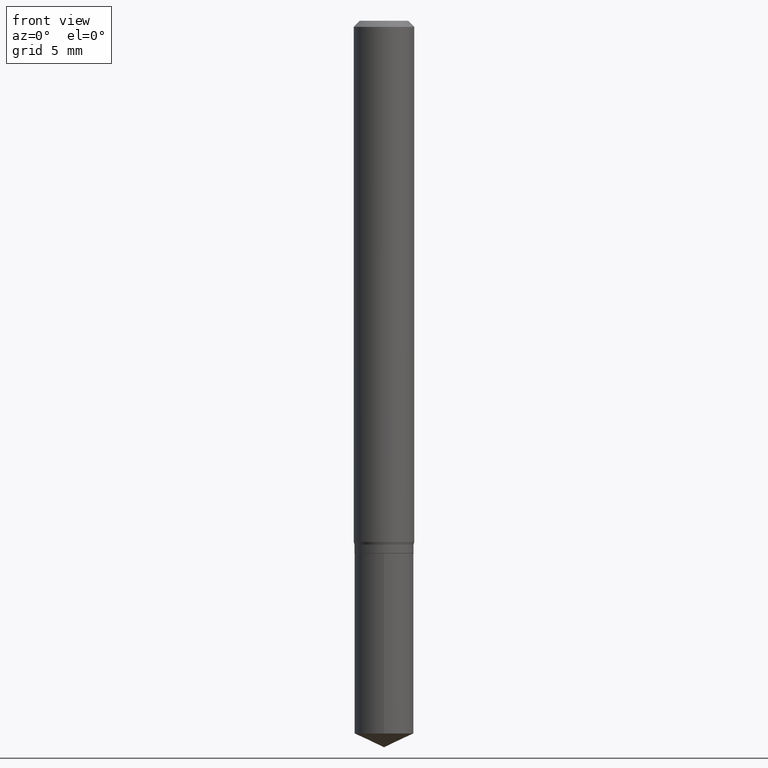
[diagram: clean part render]
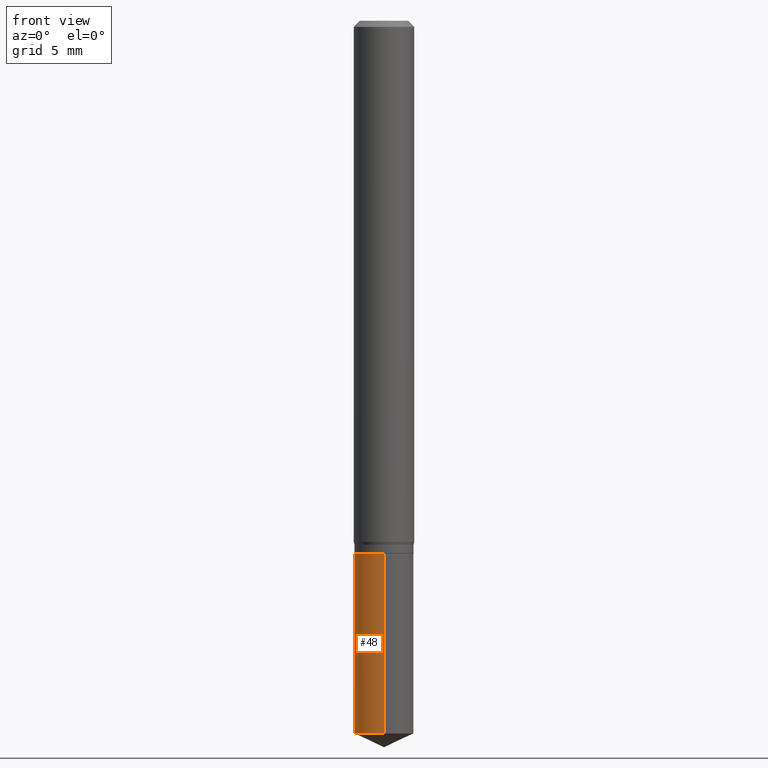
[diagram: same view with one face highlighted and labeled with its STEP entity id]
A machine part, front view. The second image highlights one B-rep face of the part: STEP entity #48.
In plain terms, the highlighted cylindrical surface (edge-blend (fillet) strip) has radius 1.5494 mm, axis along (-0, 0, 1).
Its self-contained STEP definition (entity closure, byte-faithful):
#28 = DIRECTION ( 'NONE',  ( -6.982962677686265922E-15, -1.000000000000000000, 4.478439333875842027E-15 ) ) ;
#48 = ADVANCED_FACE ( 'NONE', ( #85 ), #339, .T. ) ;
#49 = DIRECTION ( 'NONE',  ( -2.445399690415121810E-29, 3.491580316559632610E-15, 1.000000000000000000 ) ) ;
#50 = DIRECTION ( 'NONE',  ( -2.445399690415121530E-29, 3.491580316559632610E-15, 1.000000000000000000 ) ) ;
#71 = EDGE_LOOP ( 'NONE', ( #359, #187, #401, #430 ) ) ;
#85 = FACE_OUTER_BOUND ( 'NONE', #71, .T. ) ;
#112 = CARTESIAN_POINT ( 'NONE',  ( 4.334310688136970464E-16, 0.06099999999999615452, -1.100000000000000311 ) ) ;
#121 = CARTESIAN_POINT ( 'NONE',  ( -4.259607233388352844E-16, -0.06100000000000383588, -1.099999999999999645 ) ) ;
#140 = VERTEX_POINT ( 'NONE', #490 ) ;
#148 = DIRECTION ( 'NONE',  ( -2.445399690415121810E-29, 3.491580316559632610E-15, 1.000000000000000000 ) ) ;
#169 = CIRCLE ( 'NONE', #363, 0.06099999999999999173 ) ;
#171 = VERTEX_POINT ( 'NONE', #229 ) ;
#183 = CARTESIAN_POINT ( 'NONE',  ( 3.598616738193382173E-29, -5.137944410270138335E-15, -1.471555232852545414 ) ) ;
#187 = ORIENTED_EDGE ( 'NONE', *, *, #448, .T. ) ;
#191 = LINE ( 'NONE', #376, #383 ) ;
#194 = CIRCLE ( 'NONE', #201, 0.06099999999999999173 ) ;
#201 = AXIS2_PLACEMENT_3D ( 'NONE', #391, #50, #204 ) ;
#204 = DIRECTION ( 'NONE',  ( -6.982962677686265922E-15, -1.000000000000000000, 4.478439333875842027E-15 ) ) ;
#229 = CARTESIAN_POINT ( 'NONE',  ( -4.259607233388263111E-16, -0.06100000000000515427, -1.471555232852544970 ) ) ;
#306 = EDGE_CURVE ( 'NONE', #445, #478, #194, .T. ) ;
#336 = CARTESIAN_POINT ( 'NONE',  ( -4.259607233388352844E-16, -0.06100000000000383588, -1.099999999999999645 ) ) ;
#339 = CYLINDRICAL_SURFACE ( 'NONE', #440, 0.06099999999999999173 ) ;
#343 = CARTESIAN_POINT ( 'NONE',  ( 2.690015686803650369E-29, -3.840629472727460101E-15, -1.100000000000000089 ) ) ;
#347 = DIRECTION ( 'NONE',  ( -6.982962677686265922E-15, -1.000000000000000000, 4.478439333875842027E-15 ) ) ;
#359 = ORIENTED_EDGE ( 'NONE', *, *, #369, .F. ) ;
#363 = AXIS2_PLACEMENT_3D ( 'NONE', #183, #367, #28 ) ;
#367 = DIRECTION ( 'NONE',  ( -2.445399690415121530E-29, 3.491580316559632610E-15, 1.000000000000000000 ) ) ;
#369 = EDGE_CURVE ( 'NONE', #140, #445, #191, .T. ) ;
#372 = LINE ( 'NONE', #336, #410 ) ;
#376 = CARTESIAN_POINT ( 'NONE',  ( 4.334310688136878759E-16, 0.06099999999999615452, -1.100000000000000311 ) ) ;
#377 = DIRECTION ( 'NONE',  ( -2.445399690415121530E-29, 3.491580316559632610E-15, 1.000000000000000000 ) ) ;
#383 = VECTOR ( 'NONE', #148, 39.37007874015748143 ) ;
#391 = CARTESIAN_POINT ( 'NONE',  ( 2.690015686803650369E-29, -3.840629472727460101E-15, -1.100000000000000089 ) ) ;
#401 = ORIENTED_EDGE ( 'NONE', *, *, #477, .T. ) ;
#410 = VECTOR ( 'NONE', #49, 39.37007874015748143 ) ;
#430 = ORIENTED_EDGE ( 'NONE', *, *, #306, .F. ) ;
#440 = AXIS2_PLACEMENT_3D ( 'NONE', #343, #377, #347 ) ;
#445 = VERTEX_POINT ( 'NONE', #112 ) ;
#448 = EDGE_CURVE ( 'NONE', #140, #171, #169, .T. ) ;
#477 = EDGE_CURVE ( 'NONE', #171, #478, #372, .T. ) ;
#478 = VERTEX_POINT ( 'NONE', #121 ) ;
#490 = CARTESIAN_POINT ( 'NONE',  ( 4.334310688136970464E-16, 0.06099999999999486389, -1.471555232852545636 ) ) ;